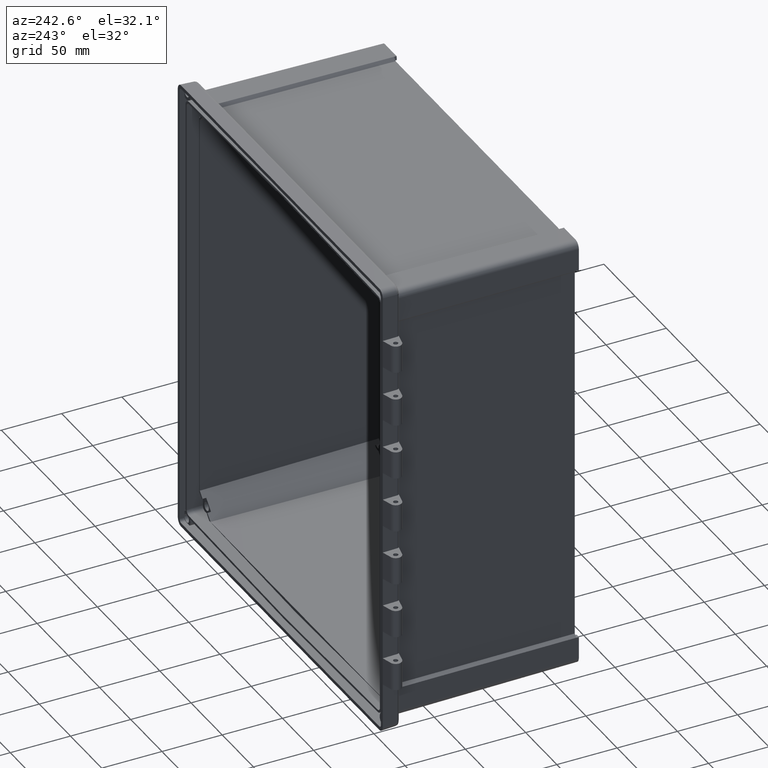
[diagram: clean part render]
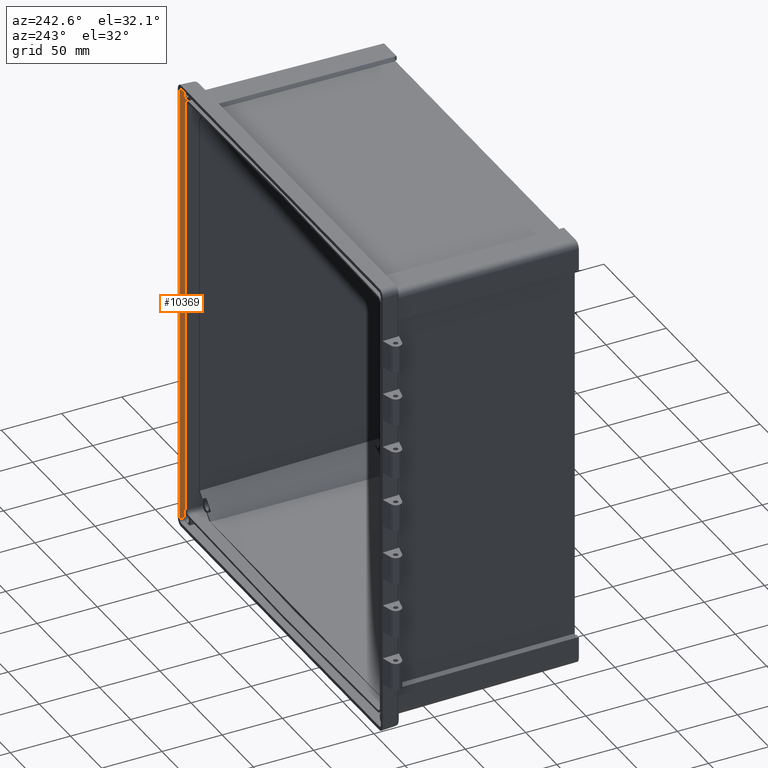
[diagram: same view with one face highlighted and labeled with its STEP entity id]
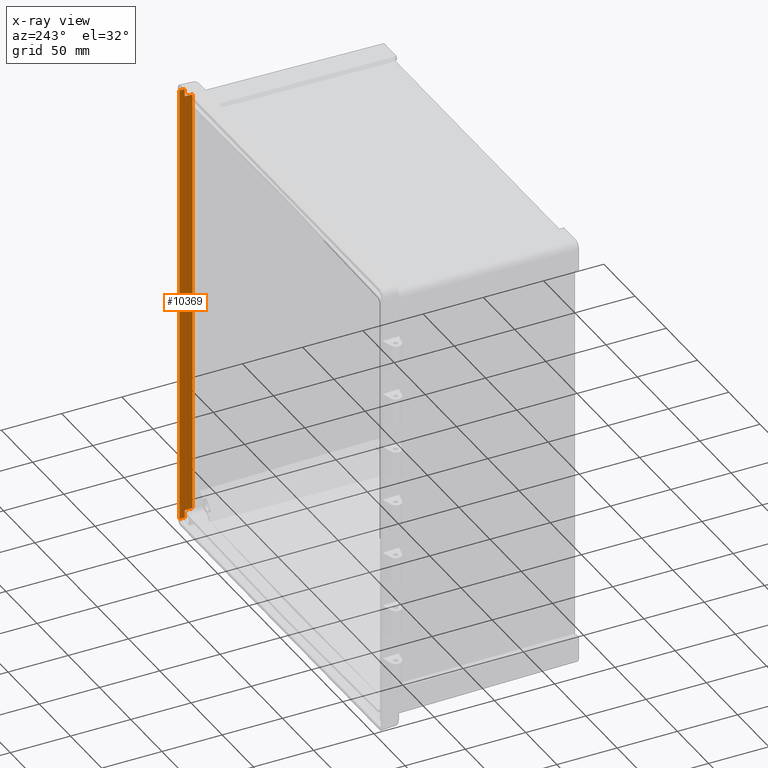
[diagram: x-ray of the same camera — body ghosted, the highlighted face saturated]
A machine part, auxiliary view. The second image highlights one B-rep face of the part: STEP entity #10369.
The next image is the same camera in x-ray: the body ghosted, the highlighted face saturated — about 0% of this face is hidden behind the body in this view.
In plain terms, the highlighted planar face has unit normal (0.9994, -0.0349, 0).
Its self-contained STEP definition (entity closure, byte-faithful):
#108 = ORIENTED_EDGE ( 'NONE', *, *, #12334, .F. ) ;
#320 = VERTEX_POINT ( 'NONE', #13354 ) ;
#415 = ORIENTED_EDGE ( 'NONE', *, *, #857, .F. ) ;
#592 = CARTESIAN_POINT ( 'NONE',  ( 161.0815079591603800, 0.2961787169620380700, -186.3830308916125200 ) ) ;
#857 = EDGE_CURVE ( 'NONE', #7038, #13836, #19211, .T. ) ;
#1389 = CARTESIAN_POINT ( 'NONE',  ( 161.0748213222961500, 0.1046984901075031500, -191.8729938033533200 ) ) ;
#1562 = CARTESIAN_POINT ( 'NONE',  ( 160.9314820924900000, -4.000000000000000000, 186.2330050249421400 ) ) ;
#1704 = CARTESIAN_POINT ( 'NONE',  ( 160.6823205927160200, -11.13505181587846400, 185.9838435251681700 ) ) ;
#1779 = LINE ( 'NONE', #7231, #13858 ) ;
#2104 = LINE ( 'NONE', #9344, #9656 ) ;
#2262 = CARTESIAN_POINT ( 'NONE',  ( 160.9314820924899700, -4.000000000000000000, -184.3108478767930800 ) ) ;
#2406 = LINE ( 'NONE', #4658, #6921 ) ;
#2436 = EDGE_CURVE ( 'NONE', #11388, #6984, #17926, .T. ) ;
#2631 = DIRECTION ( 'NONE',  ( 0.0000000000000000000, -0.0000000000000000000, -1.000000000000000000 ) ) ;
#2703 = CARTESIAN_POINT ( 'NONE',  ( 161.0711651704569600, 0.0000000000000000000, -186.3726881029091100 ) ) ;
#2754 = CARTESIAN_POINT ( 'NONE',  ( 160.7036978718086600, -10.52288663728131000, -179.7927384957919800 ) ) ;
#2988 = VECTOR ( 'NONE', #10692, 1000.000000000000000 ) ;
#3932 = DIRECTION ( 'NONE',  ( 0.0000000000000000000, -0.0000000000000000000, -1.000000000000000000 ) ) ;
#4319 = VECTOR ( 'NONE', #12861, 1000.000000000000000 ) ;
#4452 = LINE ( 'NONE', #12710, #16539 ) ;
#4574 = CARTESIAN_POINT ( 'NONE',  ( 160.7036978718086600, -10.52288663728130700, 179.7927384957919800 ) ) ;
#4658 = CARTESIAN_POINT ( 'NONE',  ( 160.9314820924899700, -4.000000000000000000, -191.8729938033533200 ) ) ;
#5226 = EDGE_CURVE ( 'NONE', #11199, #10991, #4452, .T. ) ;
#5415 = DIRECTION ( 'NONE',  ( 0.03487826274237469700, 0.9987827659587182900, -0.03487826274237469700 ) ) ;
#6192 = CARTESIAN_POINT ( 'NONE',  ( 160.7817602089320100, -8.287473779560958300, -179.8865779229292900 ) ) ;
#6350 = EDGE_CURVE ( 'NONE', #320, #12522, #2406, .T. ) ;
#6610 = ORIENTED_EDGE ( 'NONE', *, *, #16231, .F. ) ;
#6732 = ORIENTED_EDGE ( 'NONE', *, *, #7273, .F. ) ;
#6852 = ORIENTED_EDGE ( 'NONE', *, *, #6350, .F. ) ;
#6921 = VECTOR ( 'NONE', #20585, 1000.000000000000000 ) ;
#6984 = VERTEX_POINT ( 'NONE', #9502 ) ;
#7038 = VERTEX_POINT ( 'NONE', #11257 ) ;
#7231 = CARTESIAN_POINT ( 'NONE',  ( 160.9314820924899700, -4.000000000000000000, -191.8729938033533200 ) ) ;
#7273 = EDGE_CURVE ( 'NONE', #13162, #9950, #2104, .T. ) ;
#7328 = ORIENTED_EDGE ( 'NONE', *, *, #18506, .F. ) ;
#7553 = CARTESIAN_POINT ( 'NONE',  ( 160.9314820924899700, -4.000000000000016000, 180.0781171642428300 ) ) ;
#8031 = DIRECTION ( 'NONE',  ( -0.03487826274237469700, -0.9987827659587182900, -0.03487826274237469700 ) ) ;
#8063 = ORIENTED_EDGE ( 'NONE', *, *, #18866, .F. ) ;
#8204 = CARTESIAN_POINT ( 'NONE',  ( 160.9314820924899700, -4.000000000000000000, -191.8729938033533200 ) ) ;
#8591 = LINE ( 'NONE', #8204, #4319 ) ;
#8983 = CARTESIAN_POINT ( 'NONE',  ( 160.9314820924899700, -4.000000000000000000, -191.8729938033533200 ) ) ;
#9121 = VECTOR ( 'NONE', #2631, 1000.000000000000000 ) ;
#9344 = CARTESIAN_POINT ( 'NONE',  ( 160.7036978718086600, -10.52288663728131000, -191.8729938033533200 ) ) ;
#9384 = LINE ( 'NONE', #1704, #10400 ) ;
#9412 = VECTOR ( 'NONE', #16121, 1000.000000000000000 ) ;
#9414 = DIRECTION ( 'NONE',  ( 0.9993908270190957600, -0.03489949670250105200, 0.0000000000000000000 ) ) ;
#9502 = CARTESIAN_POINT ( 'NONE',  ( 160.9314820924899700, -4.000000000000000000, 185.6891521232069200 ) ) ;
#9522 = CARTESIAN_POINT ( 'NONE',  ( 160.9314820924899700, -4.000000000000000000, -180.0781171642428500 ) ) ;
#9592 =( BOUNDED_CURVE ( )  B_SPLINE_CURVE ( 3, ( #4574, #10800, #17189, #7553 ),
 .UNSPECIFIED., .F., .F. ) 
 B_SPLINE_CURVE_WITH_KNOTS ( ( 4, 4 ),
 ( 2.517243722225448000, 2.556193114886213800 ),
 .UNSPECIFIED. ) 
 CURVE ( )  GEOMETRIC_REPRESENTATION_ITEM ( )  RATIONAL_B_SPLINE_CURVE ( ( 1.000000000000000000, 0.9998735827298134100, 0.9998735827298134100, 1.000000000000000000 ) ) 
 REPRESENTATION_ITEM ( '' )  );
#9656 = VECTOR ( 'NONE', #10974, 1000.000000000000000 ) ;
#9950 = VERTEX_POINT ( 'NONE', #16851 ) ;
#10369 = ADVANCED_FACE ( 'NONE', ( #13090 ), #13993, .F. ) ;
#10400 = VECTOR ( 'NONE', #8031, 1000.000000000000100 ) ;
#10692 = DIRECTION ( 'NONE',  ( 0.0000000000000000000, -0.0000000000000000000, -1.000000000000000000 ) ) ;
#10800 = CARTESIAN_POINT ( 'NONE',  ( 160.7817602089320100, -8.287473779561109300, 179.8865779229292900 ) ) ;
#10974 = DIRECTION ( 'NONE',  ( 0.0000000000000000000, 0.0000000000000000000, -1.000000000000000000 ) ) ;
#10987 = VERTEX_POINT ( 'NONE', #16783 ) ;
#10991 = VERTEX_POINT ( 'NONE', #16567 ) ;
#11199 = VERTEX_POINT ( 'NONE', #2703 ) ;
#11250 = CARTESIAN_POINT ( 'NONE',  ( 160.9314820924899700, -4.000000000000016000, 180.0781171642428300 ) ) ;
#11257 = CARTESIAN_POINT ( 'NONE',  ( 160.9314820924899700, -4.000000000000000000, 184.3108478767930800 ) ) ;
#11388 = VERTEX_POINT ( 'NONE', #1562 ) ;
#11663 = ORIENTED_EDGE ( 'NONE', *, *, #2436, .F. ) ;
#11827 = LINE ( 'NONE', #8983, #2988 ) ;
#11926 = CARTESIAN_POINT ( 'NONE',  ( 160.7036978718086600, -10.52288663728130700, 179.7927384957919800 ) ) ;
#12334 = EDGE_CURVE ( 'NONE', #16183, #320, #1779, .T. ) ;
#12522 = VERTEX_POINT ( 'NONE', #19253 ) ;
#12566 = ORIENTED_EDGE ( 'NONE', *, *, #18031, .F. ) ;
#12710 = CARTESIAN_POINT ( 'NONE',  ( 161.0711651704569600, 0.0000000000000000000, -191.8729938033533200 ) ) ;
#12831 = EDGE_CURVE ( 'NONE', #13162, #13836, #9592, .T. ) ;
#12861 = DIRECTION ( 'NONE',  ( 0.0000000000000000000, -0.0000000000000000000, -1.000000000000000000 ) ) ;
#13090 = FACE_OUTER_BOUND ( 'NONE', #15254, .T. ) ;
#13162 = VERTEX_POINT ( 'NONE', #11926 ) ;
#13354 = CARTESIAN_POINT ( 'NONE',  ( 160.9314820924899700, -4.000000000000000000, -185.6891521232069200 ) ) ;
#13729 = EDGE_CURVE ( 'NONE', #6984, #7038, #11827, .T. ) ;
#13754 = VECTOR ( 'NONE', #5415, 1000.000000000000100 ) ;
#13836 = VERTEX_POINT ( 'NONE', #11250 ) ;
#13858 = VECTOR ( 'NONE', #3932, 1000.000000000000000 ) ;
#13912 =( BOUNDED_CURVE ( )  B_SPLINE_CURVE ( 3, ( #2754, #6192, #19138, #9522 ),
 .UNSPECIFIED., .F., .F. ) 
 B_SPLINE_CURVE_WITH_KNOTS ( ( 4, 4 ),
 ( 2.517243722225448000, 2.556193114886216500 ),
 .UNSPECIFIED. ) 
 CURVE ( )  GEOMETRIC_REPRESENTATION_ITEM ( )  RATIONAL_B_SPLINE_CURVE ( ( 1.000000000000000000, 0.9998735827298134100, 0.9998735827298134100, 1.000000000000000000 ) ) 
 REPRESENTATION_ITEM ( '' )  );
#13993 = PLANE ( 'NONE',  #20232 ) ;
#14719 = CARTESIAN_POINT ( 'NONE',  ( 160.9314820924899700, -4.000000000000000000, -191.8729938033533200 ) ) ;
#14754 = ORIENTED_EDGE ( 'NONE', *, *, #13729, .F. ) ;
#15254 = EDGE_LOOP ( 'NONE', ( #11663, #12566, #20653, #6610, #6852, #108, #7328, #8063, #6732, #19501, #415, #14754 ) ) ;
#15770 = LINE ( 'NONE', #592, #13754 ) ;
#16121 = DIRECTION ( 'NONE',  ( 0.0000000000000000000, -0.0000000000000000000, -1.000000000000000000 ) ) ;
#16183 = VERTEX_POINT ( 'NONE', #2262 ) ;
#16231 = EDGE_CURVE ( 'NONE', #12522, #11199, #15770, .T. ) ;
#16539 = VECTOR ( 'NONE', #17570, 1000.000000000000000 ) ;
#16567 = CARTESIAN_POINT ( 'NONE',  ( 161.0711651704569900, 0.0000000000000000000, 186.3726881029091400 ) ) ;
#16783 = CARTESIAN_POINT ( 'NONE',  ( 160.9314820924899700, -4.000000000000000000, -180.0781171642428500 ) ) ;
#16851 = CARTESIAN_POINT ( 'NONE',  ( 160.7036978718086600, -10.52288663728131000, -179.7927384957919800 ) ) ;
#16911 = CARTESIAN_POINT ( 'NONE',  ( 160.9314820924899700, -4.000000000000000000, -191.8729938033533200 ) ) ;
#17189 = CARTESIAN_POINT ( 'NONE',  ( 160.8576978823258200, -6.112903330540736300, 179.9817161728641400 ) ) ;
#17570 = DIRECTION ( 'NONE',  ( -0.0000000000000000000, -0.0000000000000000000, 1.000000000000000000 ) ) ;
#17926 = LINE ( 'NONE', #16911, #9121 ) ;
#18031 = EDGE_CURVE ( 'NONE', #10991, #11388, #9384, .T. ) ;
#18506 = EDGE_CURVE ( 'NONE', #10987, #16183, #8591, .T. ) ;
#18866 = EDGE_CURVE ( 'NONE', #9950, #10987, #13912, .T. ) ;
#19138 = CARTESIAN_POINT ( 'NONE',  ( 160.8576978823258500, -6.112903330540455600, -179.9817161728641400 ) ) ;
#19211 = LINE ( 'NONE', #14719, #9412 ) ;
#19253 = CARTESIAN_POINT ( 'NONE',  ( 160.9314820924900000, -4.000000000000000000, -186.2330050249421400 ) ) ;
#19501 = ORIENTED_EDGE ( 'NONE', *, *, #12831, .T. ) ;
#20232 = AXIS2_PLACEMENT_3D ( 'NONE', #1389, #9414, #20529 ) ;
#20529 = DIRECTION ( 'NONE',  ( 0.03489949670250104600, 0.9993908270190956500, 0.0000000000000000000 ) ) ;
#20585 = DIRECTION ( 'NONE',  ( 0.0000000000000000000, -0.0000000000000000000, -1.000000000000000000 ) ) ;
#20653 = ORIENTED_EDGE ( 'NONE', *, *, #5226, .F. ) ;